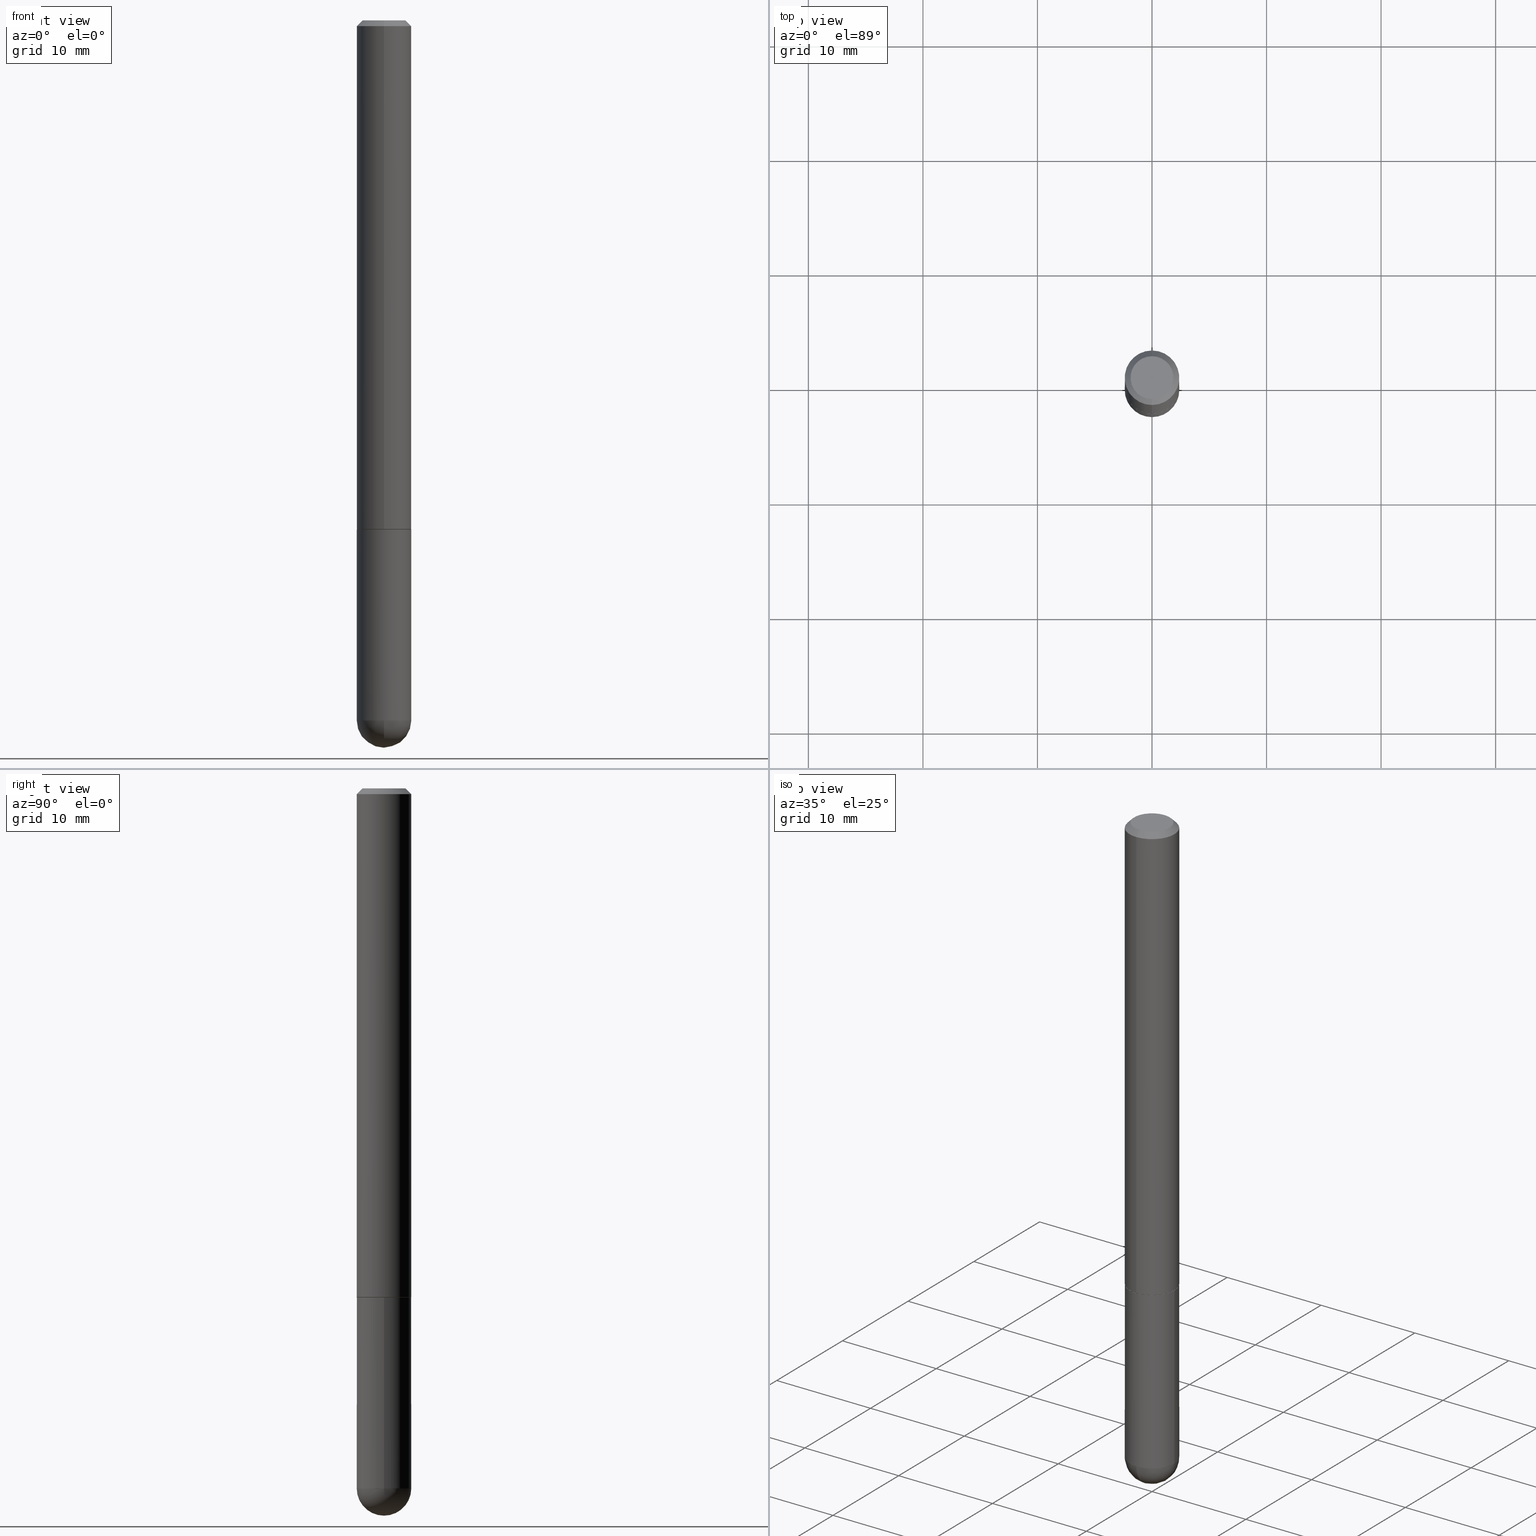
[diagram: canonical four-view strip — front | top / right | iso, engineering-drawing reading convention]
A machine part, canonical four-view strip (front | top / right | iso — engineering-drawing reading convention). The complete STEP part file that produces these views, byte-faithful:
ISO-10303-21;
HEADER;
FILE_DESCRIPTION (( 'STEP AP203' ),
    '1' );
FILE_NAME ('31781.STEP',
    '2024-02-21T16:53:20',
    ( '' ),
    ( '' ),
    'SwSTEP 2.0',
    'SolidWorks 2023',
    '' );
FILE_SCHEMA (( 'CONFIG_CONTROL_DESIGN' ));
ENDSEC;

DATA;
#1 = CALENDAR_DATE ( 2024, 21, 2 ) ;
#2 = APPROVAL_DATE_TIME ( #160, #24 ) ;
#3 = DIRECTION ( 'NONE',  ( -2.444952192585745685E-29, 3.492221158921293024E-15, 1.000000000000000000 ) ) ;
#4 = CC_DESIGN_PERSON_AND_ORGANIZATION_ASSIGNMENT ( #219, #186, ( #406 ) ) ;
#5 = AXIS2_PLACEMENT_3D ( 'NONE', #93, #209, #60 ) ;
#6 = CIRCLE ( 'NONE', #236, 0.09374999999999998612 ) ;
#7 = DIRECTION ( 'NONE',  ( -2.445468806185136597E-29, 3.491481338843145583E-15, 1.000000000000000000 ) ) ;
#8 = CARTESIAN_POINT ( 'NONE',  ( 5.884409314882984936E-29, -8.401376971591319218E-15, -2.406250000000000000 ) ) ;
#9 = ORIENTED_EDGE ( 'NONE', *, *, #43, .T. ) ;
#10 = ORIENTED_EDGE ( 'NONE', *, *, #105, .T. ) ;
#11 = ORIENTED_EDGE ( 'NONE', *, *, #384, .F. ) ;
#12 = LINE ( 'NONE', #177, #18 ) ;
#13 = VERTEX_POINT ( 'NONE', #45 ) ;
#14 = CYLINDRICAL_SURFACE ( 'NONE', #356, 0.09375000000000012490 ) ;
#15 = DIRECTION ( 'NONE',  ( -2.444952192585745685E-29, 3.492221158921293024E-15, 1.000000000000000000 ) ) ;
#16 = CARTESIAN_POINT ( 'NONE',  ( 4.279570410823989044E-29, -6.110092342975505460E-15, -1.750000000000000222 ) ) ;
#17 = ORIENTED_EDGE ( 'NONE', *, *, #138, .T. ) ;
#18 = VECTOR ( 'NONE', #264, 39.37007874015748143 ) ;
#19 = LOCAL_TIME ( 11, 53, 20.00000000000000000, #134 ) ;
#20 = CARTESIAN_POINT ( 'NONE',  ( 6.546527510330880958E-16, 0.09374999999999995837, -0.02000000000000034736 ) ) ;
#21 = DIRECTION ( 'NONE',  ( -6.982962677686265922E-15, -1.000000000000000000, 2.913971193241873272E-15 ) ) ;
#22 = FACE_OUTER_BOUND ( 'NONE', #296, .T. ) ;
#23 = CALENDAR_DATE ( 2024, 21, 2 ) ;
#24 = APPROVAL ( #129, 'UNSPECIFIED' ) ;
#25 = CARTESIAN_POINT ( 'NONE',  ( -6.431716872910806895E-16, -0.09375000000000009714, -0.01999999999999968817 ) ) ;
#26 = CARTESIAN_POINT ( 'NONE',  ( 1.030290814848942582E-46, -1.471604800440920804E-32, -4.213950759337024545E-18 ) ) ;
#27 = ORIENTED_EDGE ( 'NONE', *, *, #410, .T. ) ;
#28 = APPROVAL_DATE_TIME ( #247, #101 ) ;
#29 = CIRCLE ( 'NONE', #188, 0.09375000000000023592 ) ;
#30 = AXIS2_PLACEMENT_3D ( 'NONE', #179, #370, #409 ) ;
#31 = APPROVAL_STATUS ( 'not_yet_approved' ) ;
#32 = COORDINATED_UNIVERSAL_TIME_OFFSET ( 5, 0, .BEHIND. ) ;
#33 = EDGE_CURVE ( 'NONE', #204, #392, #393, .T. ) ;
#34 = PERSON_AND_ORGANIZATION ( #353, #231 ) ;
#35 = CARTESIAN_POINT ( 'NONE',  ( 5.848231242562252906E-16, 0.07375000000000006550, -2.617652612297826062E-16 ) ) ;
#36 = VECTOR ( 'NONE', #115, 39.37007874015748143 ) ;
#37 = CIRCLE ( 'NONE', #200, 0.09274999999999999911 ) ;
#38 = CARTESIAN_POINT ( 'NONE',  ( 5.884409314882984936E-29, -8.401376971591319218E-15, -2.406250000000000000 ) ) ;
#39 = DESIGN_CONTEXT ( 'detailed design', #195, 'design' ) ;
#40 = CARTESIAN_POINT ( 'NONE',  ( 5.884409314882984936E-29, -8.401376971591319218E-15, -2.406250000000000000 ) ) ;
#41 = CC_DESIGN_PERSON_AND_ORGANIZATION_ASSIGNMENT ( #284, #95, ( #120 ) ) ;
#42 = DIRECTION ( 'NONE',  ( 2.438088387897960049E-29, -3.491481338843145188E-15, -1.000000000000000000 ) ) ;
#43 = EDGE_CURVE ( 'NONE', #170, #268, #12, .T. ) ;
#44 = EDGE_LOOP ( 'NONE', ( #207, #49, #27, #11 ) ) ;
#45 = CARTESIAN_POINT ( 'NONE',  ( -6.476697883553583983E-16, -0.09275000000000611922, -1.750000000000000000 ) ) ;
#46 = ADVANCED_FACE ( 'NONE', ( #110 ), #233, .F. ) ;
#47 = ORIENTED_EDGE ( 'NONE', *, *, #132, .T. ) ;
#48 = APPLICATION_PROTOCOL_DEFINITION ( 'international standard', 'config_control_design', 1994, #357 ) ;
#49 = ORIENTED_EDGE ( 'NONE', *, *, #83, .T. ) ;
#50 = VECTOR ( 'NONE', #96, 39.37007874015748143 ) ;
#51 = LOCAL_TIME ( 11, 53, 20.00000000000000000, #162 ) ;
#52 = ORIENTED_EDGE ( 'NONE', *, *, #402, .T. ) ;
#53 = CARTESIAN_POINT ( 'NONE',  ( 0.000000000000000000, 0.000000000000000000, 0.000000000000000000 ) ) ;
#54 = ADVANCED_FACE ( 'NONE', ( #202 ), #14, .T. ) ;
#55 = EDGE_LOOP ( 'NONE', ( #17, #121, #149, #394 ) ) ;
#56 = AXIS2_PLACEMENT_3D ( 'NONE', #8, #111, #65 ) ;
#57 = CYLINDRICAL_SURFACE ( 'NONE', #146, 0.09375000000000012490 ) ;
#58 = DIRECTION ( 'NONE',  ( 4.937700262164540942E-15, 0.7071067811865441310, -0.7071067811865509034 ) ) ;
#59 = CALENDAR_DATE ( 2024, 21, 2 ) ;
#60 = DIRECTION ( 'NONE',  ( 6.982962677686265133E-15, 1.000000000000000000, -2.913971193241872483E-15 ) ) ;
#61 = LINE ( 'NONE', #405, #104 ) ;
#62 = VECTOR ( 'NONE', #325, 39.37007874015748143 ) ;
#63 = EDGE_CURVE ( 'NONE', #392, #144, #230, .T. ) ;
#64 = ORIENTED_EDGE ( 'NONE', *, *, #33, .F. ) ;
#65 = DIRECTION ( 'NONE',  ( 1.000000000000000000, -6.982962677686273810E-15, 0.000000000000000000 ) ) ;
#66 = CLOSED_SHELL ( 'NONE', ( #189, #54, #289, #192, #76, #249, #224, #46 ) ) ;
#67 = CIRCLE ( 'NONE', #56, 0.09374999999999998612 ) ;
#68 = DIRECTION ( 'NONE',  ( -2.444952192585745685E-29, 3.492221158921293024E-15, 1.000000000000000000 ) ) ;
#69 = CARTESIAN_POINT ( 'NONE',  ( 4.278666337025055369E-29, -6.111387028112263581E-15, -1.750000000000000222 ) ) ;
#70 = DIRECTION ( 'NONE',  ( -2.444952192585745685E-29, 3.492221158921293024E-15, 1.000000000000000000 ) ) ;
#71 = DIRECTION ( 'NONE',  ( -6.982962677686266711E-15, -1.000000000000000000, 3.492221158921293024E-15 ) ) ;
#72 = CARTESIAN_POINT ( 'NONE',  ( 6.546527510331454854E-16, 0.09374999999999149292, -2.406250000000000444 ) ) ;
#73 =( NAMED_UNIT ( * ) PLANE_ANGLE_UNIT ( ) SI_UNIT ( $, .RADIAN. ) );
#74 = CARTESIAN_POINT ( 'NONE',  ( 0.000000000000000000, 0.000000000000000000, 0.000000000000000000 ) ) ;
#75 = DIRECTION ( 'NONE',  ( -6.982962677686265922E-15, -1.000000000000000000, 3.492221158921292630E-15 ) ) ;
#76 = ADVANCED_FACE ( 'NONE', ( #184 ), #57, .T. ) ;
#77 = ORIENTED_EDGE ( 'NONE', *, *, #321, .T. ) ;
#78 = VERTEX_POINT ( 'NONE', #374 ) ;
#79 = ORIENTED_EDGE ( 'NONE', *, *, #315, .F. ) ;
#80 = ORIENTED_EDGE ( 'NONE', *, *, #388, .T. ) ;
#81 = ORIENTED_EDGE ( 'NONE', *, *, #138, .F. ) ;
#82 = CIRCLE ( 'NONE', #382, 0.07375000000000006550 ) ;
#83 = EDGE_CURVE ( 'NONE', #331, #144, #155, .T. ) ;
#84 = FACE_OUTER_BOUND ( 'NONE', #203, .T. ) ;
#85 = CARTESIAN_POINT ( 'NONE',  ( 6.590283874175356132E-16, 0.09274999999999389289, -1.750000000000000444 ) ) ;
#86 = ORIENTED_EDGE ( 'NONE', *, *, #362, .T. ) ;
#87 = DIRECTION ( 'NONE',  ( -2.444952192585745685E-29, 3.492221158921293024E-15, 1.000000000000000000 ) ) ;
#88 = CARTESIAN_POINT ( 'NONE',  ( 5.553289536969099810E-29, -8.875559339731369515E-15, -2.406250000000000000 ) ) ;
#89 = DIRECTION ( 'NONE',  ( -7.105427357601001070E-15, -1.000000000000000000, 0.000000000000000000 ) ) ;
#90 = COORDINATED_UNIVERSAL_TIME_OFFSET ( 5, 0, .BEHIND. ) ;
#91 = AXIS2_PLACEMENT_3D ( 'NONE', #318, #169, #297 ) ;
#92 = VECTOR ( 'NONE', #371, 39.37007874015748854 ) ;
#93 = CARTESIAN_POINT ( 'NONE',  ( 5.553289536969099810E-29, -8.875559339731369515E-15, -2.406250000000000000 ) ) ;
#94 = DIRECTION ( 'NONE',  ( 1.000000000000000000, -6.982962677686261189E-15, 0.000000000000000000 ) ) ;
#95 = PERSON_AND_ORGANIZATION_ROLE ( 'creator' ) ;
#96 = DIRECTION ( 'NONE',  ( -4.851104656540957175E-15, -0.7071067811865490160, -0.7071067811865460184 ) ) ;
#97 = APPROVAL_PERSON_ORGANIZATION ( #283, #101, #375 ) ;
#98 = DATE_AND_TIME ( #59, #19 ) ;
#99 = ORIENTED_EDGE ( 'NONE', *, *, #63, .F. ) ;
#100 = DIRECTION ( 'NONE',  ( -2.445468806185136597E-29, 3.491481338843145583E-15, 1.000000000000000000 ) ) ;
#101 = APPROVAL ( #31, 'UNSPECIFIED' ) ;
#102 = DIRECTION ( 'NONE',  ( -2.445468806185136597E-29, 3.491481338843145583E-15, 1.000000000000000000 ) ) ;
#103 = ADVANCED_BREP_SHAPE_REPRESENTATION ( '31781', ( #387, #118, #255 ), #136 ) ;
#104 = VECTOR ( 'NONE', #243, 39.37007874015748143 ) ;
#105 = EDGE_CURVE ( 'NONE', #78, #260, #61, .T. ) ;
#106 = AXIS2_PLACEMENT_3D ( 'NONE', #69, #412, #286 ) ;
#107 = FACE_OUTER_BOUND ( 'NONE', #44, .T. ) ;
#108 = DIRECTION ( 'NONE',  ( -6.982962677686265922E-15, -1.000000000000000000, 3.505871591869136910E-15 ) ) ;
#109 = PLANE ( 'NONE',  #285 ) ;
#110 = FACE_OUTER_BOUND ( 'NONE', #351, .T. ) ;
#111 = DIRECTION ( 'NONE',  ( -2.445468806185136597E-29, 3.491481338843145583E-15, 1.000000000000000000 ) ) ;
#112 = ORIENTED_EDGE ( 'NONE', *, *, #263, .T. ) ;
#113 = EDGE_LOOP ( 'NONE', ( #398, #117, #116, #79 ) ) ;
#114 = AXIS2_PLACEMENT_3D ( 'NONE', #347, #68, #277 ) ;
#115 = DIRECTION ( 'NONE',  ( -2.444952192585745965E-29, 3.492221158921292630E-15, 1.000000000000000000 ) ) ;
#116 = ORIENTED_EDGE ( 'NONE', *, *, #402, .F. ) ;
#117 = ORIENTED_EDGE ( 'NONE', *, *, #167, .T. ) ;
#118 = MANIFOLD_SOLID_BREP ( 'Body-Move/Copy2[2]', #66 ) ;
#119 = ORIENTED_EDGE ( 'NONE', *, *, #232, .F. ) ;
#120 = PRODUCT_DEFINITION ( 'UNKNOWN', '', #348, #39 ) ;
#121 = ORIENTED_EDGE ( 'NONE', *, *, #33, .T. ) ;
#122 = ORIENTED_EDGE ( 'NONE', *, *, #384, .T. ) ;
#123 = CIRCLE ( 'NONE', #205, 0.09375000000000023592 ) ;
#124 = CIRCLE ( 'NONE', #376, 0.09375000000000002776 ) ;
#125 = FACE_OUTER_BOUND ( 'NONE', #408, .T. ) ;
#126 = ADVANCED_FACE ( 'NONE', ( #303 ), #305, .T. ) ;
#127 = CARTESIAN_POINT ( 'NONE',  ( -6.431716872910806895E-16, -0.09375000000000009714, -0.01999999999999968817 ) ) ;
#128 = CARTESIAN_POINT ( 'NONE',  ( 4.278666337025055369E-29, -6.111387028112263581E-15, -1.750000000000000222 ) ) ;
#129 = APPROVAL_STATUS ( 'not_yet_approved' ) ;
#130 = CC_DESIGN_APPROVAL ( #24, ( #348 ) ) ;
#131 = COORDINATED_UNIVERSAL_TIME_OFFSET ( 5, 0, .BEHIND. ) ;
#132 = EDGE_CURVE ( 'NONE', #204, #262, #123, .T. ) ;
#133 = ADVANCED_FACE ( 'NONE', ( #340 ), #366, .T. ) ;
#134 = COORDINATED_UNIVERSAL_TIME_OFFSET ( 5, 0, .BEHIND. ) ;
#135 = PERSON_AND_ORGANIZATION ( #353, #231 ) ;
#136 =( GEOMETRIC_REPRESENTATION_CONTEXT ( 3 ) GLOBAL_UNCERTAINTY_ASSIGNED_CONTEXT ( ( #221 ) ) GLOBAL_UNIT_ASSIGNED_CONTEXT ( ( #228, #73, #161 ) ) REPRESENTATION_CONTEXT ( 'NONE', 'WORKASPACE' ) );
#137 = DIRECTION ( 'NONE',  ( 1.000000000000000000, -6.982962677686273810E-15, 0.000000000000000000 ) ) ;
#138 = EDGE_CURVE ( 'NONE', #262, #204, #29, .T. ) ;
#139 = PLANE ( 'NONE',  #190 ) ;
#140 = CYLINDRICAL_SURFACE ( 'NONE', #265, 0.09374999999999998612 ) ;
#141 = LOCAL_TIME ( 11, 53, 20.00000000000000000, #90 ) ;
#142 = DIRECTION ( 'NONE',  ( 6.982962677686265922E-15, 1.000000000000000000, -3.505871591869136910E-15 ) ) ;
#143 = ORIENTED_EDGE ( 'NONE', *, *, #256, .F. ) ;
#144 = VERTEX_POINT ( 'NONE', #25 ) ;
#145 = ORIENTED_EDGE ( 'NONE', *, *, #218, .T. ) ;
#146 = AXIS2_PLACEMENT_3D ( 'NONE', #333, #15, #404 ) ;
#147 = CIRCLE ( 'NONE', #157, 0.09374999999999998612 ) ;
#148 = ORIENTED_EDGE ( 'NONE', *, *, #167, .F. ) ;
#149 = ORIENTED_EDGE ( 'NONE', *, *, #410, .F. ) ;
#150 = CARTESIAN_POINT ( 'NONE',  ( 4.276221384832470452E-29, -6.107894806953341736E-15, -1.749000000000000110 ) ) ;
#151 = AXIS2_PLACEMENT_3D ( 'NONE', #88, #272, #400 ) ;
#152 = APPROVAL_PERSON_ORGANIZATION ( #34, #24, #339 ) ;
#153 = CARTESIAN_POINT ( 'NONE',  ( 5.553289536969099810E-29, -8.875559339731369515E-15, -2.406250000000000000 ) ) ;
#154 = FACE_OUTER_BOUND ( 'NONE', #201, .T. ) ;
#155 = LINE ( 'NONE', #127, #50 ) ;
#156 = CARTESIAN_POINT ( 'NONE',  ( -6.476697883553583983E-16, -0.09275000000000611922, -1.750000000000000000 ) ) ;
#157 = AXIS2_PLACEMENT_3D ( 'NONE', #40, #164, #386 ) ;
#158 = DIRECTION ( 'NONE',  ( 6.982962677686265133E-15, 1.000000000000000000, -2.913971193241872483E-15 ) ) ;
#159 = APPROVAL ( #337, 'UNSPECIFIED' ) ;
#160 = DATE_AND_TIME ( #1, #51 ) ;
#161 =( NAMED_UNIT ( * ) SI_UNIT ( $, .STERADIAN. ) SOLID_ANGLE_UNIT ( ) );
#162 = COORDINATED_UNIVERSAL_TIME_OFFSET ( 5, 0, .BEHIND. ) ;
#163 = CONICAL_SURFACE ( 'NONE', #30, 0.09375000000000002776, 0.7853981633974469467 ) ;
#164 = DIRECTION ( 'NONE',  ( -2.445468806185136597E-29, 3.491481338843145583E-15, 1.000000000000000000 ) ) ;
#165 = CARTESIAN_POINT ( 'NONE',  ( 5.884409314882984936E-29, -8.401376971591319218E-15, -2.406250000000000000 ) ) ;
#166 = CARTESIAN_POINT ( 'NONE',  ( 4.889904385171495644E-31, -6.984442317842590979E-17, -0.02000000000000001776 ) ) ;
#167 = EDGE_CURVE ( 'NONE', #327, #295, #253, .T. ) ;
#168 = AXIS2_PLACEMENT_3D ( 'NONE', #210, #181, #89 ) ;
#169 = DIRECTION ( 'NONE',  ( -2.444952192585745685E-29, 3.492221158921293024E-15, 1.000000000000000000 ) ) ;
#170 = VERTEX_POINT ( 'NONE', #211 ) ;
#171 = ORIENTED_EDGE ( 'NONE', *, *, #328, .T. ) ;
#172 = MECHANICAL_CONTEXT ( 'NONE', #357, 'mechanical' ) ;
#173 = DIRECTION ( 'NONE',  ( 2.444952192585745965E-29, -3.492221158921292630E-15, -1.000000000000000000 ) ) ;
#174 = VECTOR ( 'NONE', #58, 39.37007874015748143 ) ;
#175 = ORIENTED_EDGE ( 'NONE', *, *, #238, .T. ) ;
#176 = ADVANCED_FACE ( 'NONE', ( #125 ), #240, .T. ) ;
#177 = CARTESIAN_POINT ( 'NONE',  ( 0.09374999999999998612, -6.546527510330874055E-16, 4.571415727308689105E-30 ) ) ;
#178 = ORIENTED_EDGE ( 'NONE', *, *, #315, .T. ) ;
#179 = CARTESIAN_POINT ( 'NONE',  ( 4.889904385171495644E-31, -6.984442317842590979E-17, -0.02000000000000001776 ) ) ;
#180 = EDGE_LOOP ( 'NONE', ( #368, #269, #178, #9, #349 ) ) ;
#181 = DIRECTION ( 'NONE',  ( -1.000000000000000000, 7.105427357601001070E-15, -4.926315508542082329E-29 ) ) ;
#182 = AXIS2_PLACEMENT_3D ( 'NONE', #308, #276, #281 ) ;
#183 = APPROVAL_ROLE ( '' ) ;
#184 = FACE_OUTER_BOUND ( 'NONE', #274, .T. ) ;
#185 = DIRECTION ( 'NONE',  ( -4.937700262164926695E-15, -0.7071067811865993091, 0.7071067811864956143 ) ) ;
#186 = PERSON_AND_ORGANIZATION_ROLE ( 'classification_officer' ) ;
#187 = CC_DESIGN_DATE_AND_TIME_ASSIGNMENT ( #191, #304, ( #120 ) ) ;
#188 = AXIS2_PLACEMENT_3D ( 'NONE', #234, #245, #21 ) ;
#189 = ADVANCED_FACE ( 'NONE', ( #154 ), #381, .T. ) ;
#190 = AXIS2_PLACEMENT_3D ( 'NONE', #309, #248, #75 ) ;
#191 = DATE_AND_TIME ( #311, #244 ) ;
#192 = ADVANCED_FACE ( 'NONE', ( #84 ), #163, .T. ) ;
#193 = FACE_OUTER_BOUND ( 'NONE', #208, .T. ) ;
#194 = CONICAL_SURFACE ( 'NONE', #330, 0.09375000000000002776, 0.7853981633974469467 ) ;
#195 = APPLICATION_CONTEXT ( 'configuration controlled 3d designs of mechanical parts and assemblies' ) ;
#196 = CARTESIAN_POINT ( 'NONE',  ( -0.09375000000000001388, -6.589600842508318415E-15, -1.750000000000000222 ) ) ;
#197 = PRODUCT_RELATED_PRODUCT_CATEGORY ( 'detail', '', ( #291 ) ) ;
#198 = ORIENTED_EDGE ( 'NONE', *, *, #345, .F. ) ;
#199 = CARTESIAN_POINT ( 'NONE',  ( 6.546527510331302998E-16, 0.09374999999999389377, -1.750000000000000444 ) ) ;
#200 = AXIS2_PLACEMENT_3D ( 'NONE', #128, #70, #352 ) ;
#201 = EDGE_LOOP ( 'NONE', ( #145, #86, #81, #322 ) ) ;
#202 = FACE_OUTER_BOUND ( 'NONE', #55, .T. ) ;
#203 = EDGE_LOOP ( 'NONE', ( #391, #198, #122, #324 ) ) ;
#204 = VERTEX_POINT ( 'NONE', #287 ) ;
#205 = AXIS2_PLACEMENT_3D ( 'NONE', #150, #87, #403 ) ;
#206 = VECTOR ( 'NONE', #185, 39.37007874015748854 ) ;
#207 = ORIENTED_EDGE ( 'NONE', *, *, #263, .F. ) ;
#208 = EDGE_LOOP ( 'NONE', ( #332, #143 ) ) ;
#209 = DIRECTION ( 'NONE',  ( -1.000000000000000000, 6.982962677686265133E-15, -4.883557194083112901E-29 ) ) ;
#210 = CARTESIAN_POINT ( 'NONE',  ( 5.553289536969099810E-29, -8.875559339731369515E-15, -2.406250000000000000 ) ) ;
#211 = CARTESIAN_POINT ( 'NONE',  ( 0.09374999999999998612, -7.910387408316499054E-15, -2.406250000000000000 ) ) ;
#212 = CARTESIAN_POINT ( 'NONE',  ( 4.279570410823989044E-29, -6.110092342975505460E-15, -1.750000000000000222 ) ) ;
#213 = CONICAL_SURFACE ( 'NONE', #114, 0.09274999999999999911, 0.7853981633975251064 ) ;
#214 = PERSON_AND_ORGANIZATION ( #353, #231 ) ;
#215 = CARTESIAN_POINT ( 'NONE',  ( 5.786560829529485345E-29, -9.197145183376910845E-15, -2.500000000000000000 ) ) ;
#216 = DIRECTION ( 'NONE',  ( 1.000000000000000000, -6.982962677686266711E-15, 4.876176775795935793E-29 ) ) ;
#217 = DIRECTION ( 'NONE',  ( -2.444952192585745685E-29, 3.492221158921293024E-15, 1.000000000000000000 ) ) ;
#218 = EDGE_CURVE ( 'NONE', #13, #372, #302, .T. ) ;
#219 = PERSON_AND_ORGANIZATION ( #353, #231 ) ;
#220 = CIRCLE ( 'NONE', #314, 0.09374999999999998612 ) ;
#221 = UNCERTAINTY_MEASURE_WITH_UNIT (LENGTH_MEASURE( 1.000000000000000082E-05 ), #228, 'distance_accuracy_value', 'NONE');
#222 = DIRECTION ( 'NONE',  ( 1.000000000000000000, -6.982962677686261189E-15, 0.000000000000000000 ) ) ;
#223 = APPROVAL_PERSON_ORGANIZATION ( #214, #159, #183 ) ;
#224 = ADVANCED_FACE ( 'NONE', ( #193 ), #139, .F. ) ;
#225 = CARTESIAN_POINT ( 'NONE',  ( 1.030290814848942582E-46, -1.471604800440920804E-32, -4.213950759337024545E-18 ) ) ;
#226 = DIRECTION ( 'NONE',  ( 1.000000000000000000, -6.982962677686273810E-15, 0.000000000000000000 ) ) ;
#227 = CARTESIAN_POINT ( 'NONE',  ( 0.09375000000000001388, -6.764745094008592175E-15, -1.750000000000000222 ) ) ;
#228 =( CONVERSION_BASED_UNIT ( 'INCH', #390 ) LENGTH_UNIT ( ) NAMED_UNIT ( #355 ) );
#229 = ORIENTED_EDGE ( 'NONE', *, *, #362, .F. ) ;
#230 = CIRCLE ( 'NONE', #91, 0.09375000000000002776 ) ;
#231 = ORGANIZATION ( 'UNSPECIFIED', 'UNSPECIFIED', '' ) ;
#232 = EDGE_CURVE ( 'NONE', #78, #354, #67, .T. ) ;
#233 = PLANE ( 'NONE',  #319 ) ;
#234 = CARTESIAN_POINT ( 'NONE',  ( 4.276221384832470452E-29, -6.107894806953341736E-15, -1.749000000000000110 ) ) ;
#235 = DIRECTION ( 'NONE',  ( -2.445468806185136597E-29, 3.491481338843145583E-15, 1.000000000000000000 ) ) ;
#236 = AXIS2_PLACEMENT_3D ( 'NONE', #38, #100, #137 ) ;
#237 = VERTEX_POINT ( 'NONE', #35 ) ;
#238 = EDGE_CURVE ( 'NONE', #295, #78, #6, .T. ) ;
#239 = PERSON_AND_ORGANIZATION ( #353, #231 ) ;
#240 = CYLINDRICAL_SURFACE ( 'NONE', #364, 0.09374999999999998612 ) ;
#241 = CARTESIAN_POINT ( 'NONE',  ( 6.625811010963369061E-16, 0.09274999999999389289, -1.750000000000000444 ) ) ;
#242 = PERSON_AND_ORGANIZATION_ROLE ( 'creator' ) ;
#243 = DIRECTION ( 'NONE',  ( -2.445468806185136877E-29, 3.491481338843145188E-15, 1.000000000000000000 ) ) ;
#244 = LOCAL_TIME ( 11, 53, 20.00000000000000000, #32 ) ;
#245 = DIRECTION ( 'NONE',  ( -2.444952192585745685E-29, 3.492221158921293024E-15, 1.000000000000000000 ) ) ;
#246 = EDGE_CURVE ( 'NONE', #260, #268, #346, .T. ) ;
#247 = DATE_AND_TIME ( #307, #141 ) ;
#248 = DIRECTION ( 'NONE',  ( -2.444952192585745965E-29, 3.492221158921292630E-15, 1.000000000000000000 ) ) ;
#249 = ADVANCED_FACE ( 'NONE', ( #22 ), #213, .T. ) ;
#250 = PERSON_AND_ORGANIZATION ( #353, #231 ) ;
#251 = CC_DESIGN_PERSON_AND_ORGANIZATION_ASSIGNMENT ( #135, #242, ( #348 ) ) ;
#252 = DIRECTION ( 'NONE',  ( -1.000000000000000000, 6.982962677686265922E-15, -4.876176775795935793E-29 ) ) ;
#253 = CIRCLE ( 'NONE', #151, 0.09375000000000026368 ) ;
#254 = CARTESIAN_POINT ( 'NONE',  ( 6.546527510330880958E-16, 0.09374999999999995837, -0.02000000000000034736 ) ) ;
#255 = AXIS2_PLACEMENT_3D ( 'NONE', #275, #271, #397 ) ;
#256 = EDGE_CURVE ( 'NONE', #372, #13, #37, .T. ) ;
#257 = CARTESIAN_POINT ( 'NONE',  ( 0.000000000000000000, 0.000000000000000000, 0.000000000000000000 ) ) ;
#258 = DIRECTION ( 'NONE',  ( -2.444952192585745685E-29, 3.492221158921293024E-15, 1.000000000000000000 ) ) ;
#259 = CARTESIAN_POINT ( 'NONE',  ( 6.661338147750947131E-16, 0.09375000000000012490, -3.273957336488716648E-16 ) ) ;
#260 = VERTEX_POINT ( 'NONE', #196 ) ;
#261 = CARTESIAN_POINT ( 'NONE',  ( -6.546527510330883916E-16, -0.09375000000000012490, 3.273957336488716648E-16 ) ) ;
#262 = VERTEX_POINT ( 'NONE', #350 ) ;
#263 = EDGE_CURVE ( 'NONE', #331, #237, #82, .T. ) ;
#264 = DIRECTION ( 'NONE',  ( -2.445468806185136877E-29, 3.491481338843145188E-15, 1.000000000000000000 ) ) ;
#265 = AXIS2_PLACEMENT_3D ( 'NONE', #257, #7, #317 ) ;
#266 = ORIENTED_EDGE ( 'NONE', *, *, #373, .T. ) ;
#267 = DIRECTION ( 'NONE',  ( -2.445468806185136597E-29, 3.491481338843145583E-15, 1.000000000000000000 ) ) ;
#268 = VERTEX_POINT ( 'NONE', #227 ) ;
#269 = ORIENTED_EDGE ( 'NONE', *, *, #232, .T. ) ;
#270 = ADVANCED_FACE ( 'NONE', ( #389 ), #140, .T. ) ;
#271 = DIRECTION ( 'NONE',  ( 0.000000000000000000, 0.000000000000000000, 1.000000000000000000 ) ) ;
#272 = DIRECTION ( 'NONE',  ( 1.000000000000000000, -6.982962677686265922E-15, 4.883557194083112340E-29 ) ) ;
#273 = CARTESIAN_POINT ( 'NONE',  ( -6.661338147750375207E-16, -0.09375000000000877076, -2.406249999999999556 ) ) ;
#274 = EDGE_LOOP ( 'NONE', ( #64, #47, #80, #99 ) ) ;
#275 = CARTESIAN_POINT ( 'NONE',  ( 0.000000000000000000, 0.000000000000000000, 0.000000000000000000 ) ) ;
#276 = DIRECTION ( 'NONE',  ( -2.444952192585745685E-29, 3.492221158921293024E-15, 1.000000000000000000 ) ) ;
#277 = DIRECTION ( 'NONE',  ( -6.982962677686265922E-15, -1.000000000000000000, 2.945388672414299892E-15 ) ) ;
#278 = ADVANCED_FACE ( 'NONE', ( #316 ), #109, .F. ) ;
#279 = CLOSED_SHELL ( 'NONE', ( #176, #133, #126, #278, #270 ) ) ;
#280 = LOCAL_TIME ( 11, 53, 20.00000000000000000, #131 ) ;
#281 = DIRECTION ( 'NONE',  ( -6.982962677686265922E-15, -1.000000000000000000, 2.945388672414299892E-15 ) ) ;
#282 = APPLICATION_PROTOCOL_DEFINITION ( 'international standard', 'config_control_design', 1994, #195 ) ;
#283 = PERSON_AND_ORGANIZATION ( #353, #231 ) ;
#284 = PERSON_AND_ORGANIZATION ( #353, #231 ) ;
#285 = AXIS2_PLACEMENT_3D ( 'NONE', #199, #42, #252 ) ;
#286 = DIRECTION ( 'NONE',  ( -6.982962677686265922E-15, -1.000000000000000000, 2.945388672414299892E-15 ) ) ;
#287 = CARTESIAN_POINT ( 'NONE',  ( 6.661338147751165054E-16, 0.09374999999999410194, -1.749000000000000332 ) ) ;
#288 = DIRECTION ( 'NONE',  ( -6.982962677686265922E-15, -1.000000000000000000, 3.492221158921293419E-15 ) ) ;
#289 = ADVANCED_FACE ( 'NONE', ( #107 ), #194, .T. ) ;
#290 = CARTESIAN_POINT ( 'NONE',  ( 4.889904385171495644E-31, -6.984442317842590979E-17, -0.02000000000000001776 ) ) ;
#291 = PRODUCT ( '31781', '31781', '', ( #172 ) ) ;
#292 = DIRECTION ( 'NONE',  ( 2.444952192585745685E-29, -3.492221158921293024E-15, -1.000000000000000000 ) ) ;
#293 =( LENGTH_UNIT ( ) NAMED_UNIT ( * ) SI_UNIT ( $, .METRE. ) );
#294 = CIRCLE ( 'NONE', #168, 0.09375000000000026368 ) ;
#295 = VERTEX_POINT ( 'NONE', #72 ) ;
#296 = EDGE_LOOP ( 'NONE', ( #229, #323, #171, #401 ) ) ;
#297 = DIRECTION ( 'NONE',  ( -6.982962677686265922E-15, -1.000000000000000000, 3.505871591869136910E-15 ) ) ;
#298 = EDGE_LOOP ( 'NONE', ( #148, #266, #119, #363 ) ) ;
#299 = DIRECTION ( 'NONE',  ( 6.982962677686265922E-15, 1.000000000000000000, -3.492221158921292630E-15 ) ) ;
#300 = DIRECTION ( 'NONE',  ( -1.000000000000000000, 6.982962677686265133E-15, -4.883557194083112901E-29 ) ) ;
#301 = LINE ( 'NONE', #20, #174 ) ;
#302 = CIRCLE ( 'NONE', #106, 0.09274999999999999911 ) ;
#303 = FACE_OUTER_BOUND ( 'NONE', #113, .T. ) ;
#304 = DATE_TIME_ROLE ( 'creation_date' ) ;
#305 = SPHERICAL_SURFACE ( 'NONE', #329, 0.09375000000000026368 ) ;
#306 = CARTESIAN_POINT ( 'NONE',  ( -5.745667073133657526E-16, -0.07375000000000006550, 2.533373597111085586E-16 ) ) ;
#307 = CALENDAR_DATE ( 2024, 21, 2 ) ;
#308 = CARTESIAN_POINT ( 'NONE',  ( 4.278666337025055369E-29, -6.111387028112263581E-15, -1.750000000000000222 ) ) ;
#309 = CARTESIAN_POINT ( 'NONE',  ( 4.278666337025055369E-29, -6.111387028112263581E-15, -1.750000000000000222 ) ) ;
#310 = CC_DESIGN_DATE_AND_TIME_ASSIGNMENT ( #98, #411, ( #406 ) ) ;
#311 = CALENDAR_DATE ( 2024, 21, 2 ) ;
#312 = LINE ( 'NONE', #261, #62 ) ;
#313 = SHAPE_DEFINITION_REPRESENTATION ( #344, #103 ) ;
#314 = AXIS2_PLACEMENT_3D ( 'NONE', #165, #267, #226 ) ;
#315 = EDGE_CURVE ( 'NONE', #354, #170, #147, .T. ) ;
#316 = FACE_OUTER_BOUND ( 'NONE', #335, .T. ) ;
#317 = DIRECTION ( 'NONE',  ( 1.000000000000000000, -6.982962677686266711E-15, 4.876176775795935793E-29 ) ) ;
#318 = CARTESIAN_POINT ( 'NONE',  ( 4.889904385171495644E-31, -6.984442317842590979E-17, -0.02000000000000001776 ) ) ;
#319 = AXIS2_PLACEMENT_3D ( 'NONE', #360, #173, #299 ) ;
#320 = CC_DESIGN_APPROVAL ( #101, ( #120 ) ) ;
#321 = EDGE_CURVE ( 'NONE', #268, #260, #385, .T. ) ;
#322 = ORIENTED_EDGE ( 'NONE', *, *, #328, .F. ) ;
#323 = ORIENTED_EDGE ( 'NONE', *, *, #256, .T. ) ;
#324 = ORIENTED_EDGE ( 'NONE', *, *, #63, .T. ) ;
#325 = DIRECTION ( 'NONE',  ( -2.444952192585745965E-29, 3.492221158921292630E-15, 1.000000000000000000 ) ) ;
#326 = DIRECTION ( 'NONE',  ( -2.444952192585745685E-29, 3.492221158921293024E-15, 1.000000000000000000 ) ) ;
#327 = VERTEX_POINT ( 'NONE', #215 ) ;
#328 = EDGE_CURVE ( 'NONE', #13, #262, #338, .T. ) ;
#329 = AXIS2_PLACEMENT_3D ( 'NONE', #153, #300, #158 ) ;
#330 = AXIS2_PLACEMENT_3D ( 'NONE', #166, #292, #142 ) ;
#331 = VERTEX_POINT ( 'NONE', #306 ) ;
#332 = ORIENTED_EDGE ( 'NONE', *, *, #218, .F. ) ;
#333 = CARTESIAN_POINT ( 'NONE',  ( 0.000000000000000000, 0.000000000000000000, 0.000000000000000000 ) ) ;
#334 = ORIENTED_EDGE ( 'NONE', *, *, #321, .F. ) ;
#335 = EDGE_LOOP ( 'NONE', ( #77, #396 ) ) ;
#336 = AXIS2_PLACEMENT_3D ( 'NONE', #26, #217, #341 ) ;
#337 = APPROVAL_STATUS ( 'not_yet_approved' ) ;
#338 = LINE ( 'NONE', #156, #206 ) ;
#339 = APPROVAL_ROLE ( '' ) ;
#340 = FACE_OUTER_BOUND ( 'NONE', #298, .T. ) ;
#341 = DIRECTION ( 'NONE',  ( -6.982962677686265922E-15, -1.000000000000000000, 3.492221158921293419E-15 ) ) ;
#342 = CIRCLE ( 'NONE', #336, 0.07375000000000006550 ) ;
#343 = SECURITY_CLASSIFICATION_LEVEL ( 'unclassified' ) ;
#344 = PRODUCT_DEFINITION_SHAPE ( 'NONE', 'NONE',  #120 ) ;
#345 = EDGE_CURVE ( 'NONE', #237, #331, #342, .T. ) ;
#346 = CIRCLE ( 'NONE', #395, 0.09375000000000001388 ) ;
#347 = CARTESIAN_POINT ( 'NONE',  ( 4.278666337025055369E-29, -6.111387028112263581E-15, -1.750000000000000222 ) ) ;
#348 = PRODUCT_DEFINITION_FORMATION_WITH_SPECIFIED_SOURCE ( 'ANY', '', #291, .NOT_KNOWN. ) ;
#349 = ORIENTED_EDGE ( 'NONE', *, *, #246, .F. ) ;
#350 = CARTESIAN_POINT ( 'NONE',  ( -6.546527510330463847E-16, -0.09375000000000634215, -1.748999999999999888 ) ) ;
#351 = EDGE_LOOP ( 'NONE', ( #361, #112 ) ) ;
#352 = DIRECTION ( 'NONE',  ( -6.982962677686265922E-15, -1.000000000000000000, 2.945388672414299892E-15 ) ) ;
#353 = PERSON ( 'UNSPECIFIED', 'UNSPECIFIED', 'UNSPECIFIED', ('UNSPECIFIED'), ('UNSPECIFIED'), ('UNSPECIFIED') ) ;
#354 = VERTEX_POINT ( 'NONE', #273 ) ;
#355 = DIMENSIONAL_EXPONENTS ( 1.000000000000000000, 0.000000000000000000, 0.000000000000000000, 0.000000000000000000, 0.000000000000000000, 0.000000000000000000, 0.000000000000000000 ) ;
#356 = AXIS2_PLACEMENT_3D ( 'NONE', #74, #326, #71 ) ;
#357 = APPLICATION_CONTEXT ( 'configuration controlled 3d designs of mechanical parts and assemblies' ) ;
#358 = CC_DESIGN_SECURITY_CLASSIFICATION ( #406, ( #348 ) ) ;
#359 = ORIENTED_EDGE ( 'NONE', *, *, #43, .F. ) ;
#360 = CARTESIAN_POINT ( 'NONE',  ( 5.149934974793625841E-16, 0.07375000000000006550, -2.596582858501141066E-16 ) ) ;
#361 = ORIENTED_EDGE ( 'NONE', *, *, #345, .T. ) ;
#362 = EDGE_CURVE ( 'NONE', #372, #204, #367, .T. ) ;
#363 = ORIENTED_EDGE ( 'NONE', *, *, #238, .F. ) ;
#364 = AXIS2_PLACEMENT_3D ( 'NONE', #53, #377, #216 ) ;
#365 = CC_DESIGN_APPROVAL ( #159, ( #406 ) ) ;
#366 = SPHERICAL_SURFACE ( 'NONE', #5, 0.09375000000000026368 ) ;
#367 = LINE ( 'NONE', #85, #92 ) ;
#368 = ORIENTED_EDGE ( 'NONE', *, *, #105, .F. ) ;
#369 = PERSON_AND_ORGANIZATION_ROLE ( 'design_owner' ) ;
#370 = DIRECTION ( 'NONE',  ( 2.444952192585745685E-29, -3.492221158921293024E-15, -1.000000000000000000 ) ) ;
#371 = DIRECTION ( 'NONE',  ( 5.024295867788447354E-15, 0.7071067811866040831, 0.7071067811864907293 ) ) ;
#372 = VERTEX_POINT ( 'NONE', #241 ) ;
#373 = EDGE_CURVE ( 'NONE', #327, #354, #294, .T. ) ;
#374 = CARTESIAN_POINT ( 'NONE',  ( -0.09374999999999998612, -6.589600842508318415E-15, -2.406250000000000000 ) ) ;
#375 = APPROVAL_ROLE ( '' ) ;
#376 = AXIS2_PLACEMENT_3D ( 'NONE', #290, #258, #108 ) ;
#377 = DIRECTION ( 'NONE',  ( -2.445468806185136597E-29, 3.491481338843145583E-15, 1.000000000000000000 ) ) ;
#378 = CC_DESIGN_PERSON_AND_ORGANIZATION_ASSIGNMENT ( #250, #379, ( #348 ) ) ;
#379 = PERSON_AND_ORGANIZATION_ROLE ( 'design_supplier' ) ;
#380 = DATE_AND_TIME ( #23, #280 ) ;
#381 = CONICAL_SURFACE ( 'NONE', #182, 0.09274999999999999911, 0.7853981633975251064 ) ;
#382 = AXIS2_PLACEMENT_3D ( 'NONE', #225, #3, #288 ) ;
#383 = APPROVAL_DATE_TIME ( #380, #159 ) ;
#384 = EDGE_CURVE ( 'NONE', #237, #392, #301, .T. ) ;
#385 = CIRCLE ( 'NONE', #399, 0.09375000000000001388 ) ;
#386 = DIRECTION ( 'NONE',  ( 1.000000000000000000, -6.982962677686273810E-15, 0.000000000000000000 ) ) ;
#387 = MANIFOLD_SOLID_BREP ( 'Body-Move/Copy2[1]', #279 ) ;
#388 = EDGE_CURVE ( 'NONE', #262, #144, #312, .T. ) ;
#389 = FACE_OUTER_BOUND ( 'NONE', #180, .T. ) ;
#390 = LENGTH_MEASURE_WITH_UNIT ( LENGTH_MEASURE( 0.02539999999999999897 ), #293 );
#391 = ORIENTED_EDGE ( 'NONE', *, *, #83, .F. ) ;
#392 = VERTEX_POINT ( 'NONE', #254 ) ;
#393 = LINE ( 'NONE', #259, #36 ) ;
#394 = ORIENTED_EDGE ( 'NONE', *, *, #388, .F. ) ;
#395 = AXIS2_PLACEMENT_3D ( 'NONE', #212, #102, #222 ) ;
#396 = ORIENTED_EDGE ( 'NONE', *, *, #246, .T. ) ;
#397 = DIRECTION ( 'NONE',  ( 1.000000000000000000, 0.000000000000000000, 0.000000000000000000 ) ) ;
#398 = ORIENTED_EDGE ( 'NONE', *, *, #373, .F. ) ;
#399 = AXIS2_PLACEMENT_3D ( 'NONE', #16, #235, #94 ) ;
#400 = DIRECTION ( 'NONE',  ( 6.982962677686265133E-15, 1.000000000000000000, 0.000000000000000000 ) ) ;
#401 = ORIENTED_EDGE ( 'NONE', *, *, #132, .F. ) ;
#402 = EDGE_CURVE ( 'NONE', #170, #295, #220, .T. ) ;
#403 = DIRECTION ( 'NONE',  ( -6.982962677686265922E-15, -1.000000000000000000, 2.913971193241873272E-15 ) ) ;
#404 = DIRECTION ( 'NONE',  ( -6.982962677686266711E-15, -1.000000000000000000, 3.492221158921293024E-15 ) ) ;
#405 = CARTESIAN_POINT ( 'NONE',  ( -0.09374999999999998612, 6.661338147750938256E-16, -4.611501647113973295E-30 ) ) ;
#406 = SECURITY_CLASSIFICATION ( '', '', #343 ) ;
#407 = CC_DESIGN_PERSON_AND_ORGANIZATION_ASSIGNMENT ( #239, #369, ( #291 ) ) ;
#408 = EDGE_LOOP ( 'NONE', ( #175, #10, #334, #359, #52 ) ) ;
#409 = DIRECTION ( 'NONE',  ( 6.982962677686265922E-15, 1.000000000000000000, -3.505871591869136910E-15 ) ) ;
#410 = EDGE_CURVE ( 'NONE', #144, #392, #124, .T. ) ;
#411 = DATE_TIME_ROLE ( 'classification_date' ) ;
#412 = DIRECTION ( 'NONE',  ( -2.444952192585745685E-29, 3.492221158921293024E-15, 1.000000000000000000 ) ) ;
ENDSEC;
END-ISO-10303-21;
